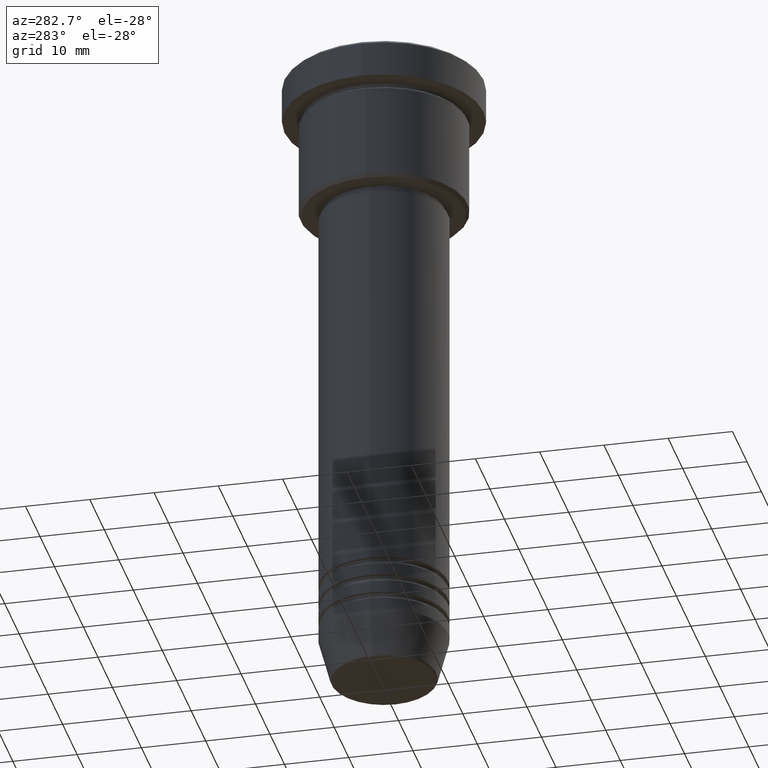
[diagram: clean part render]
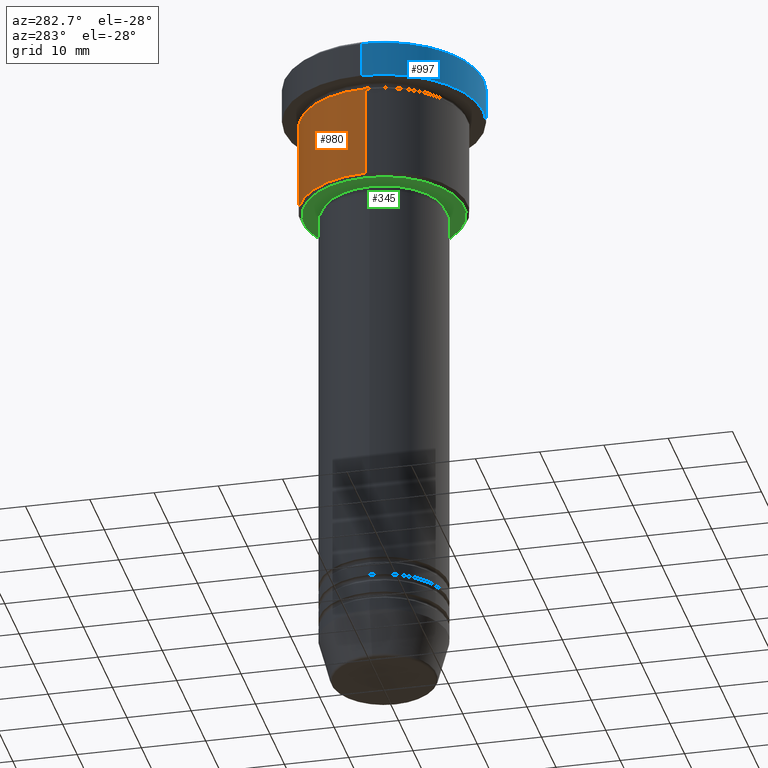
[diagram: same view with three faces highlighted in distinct colors, each labeled with its STEP entity id]
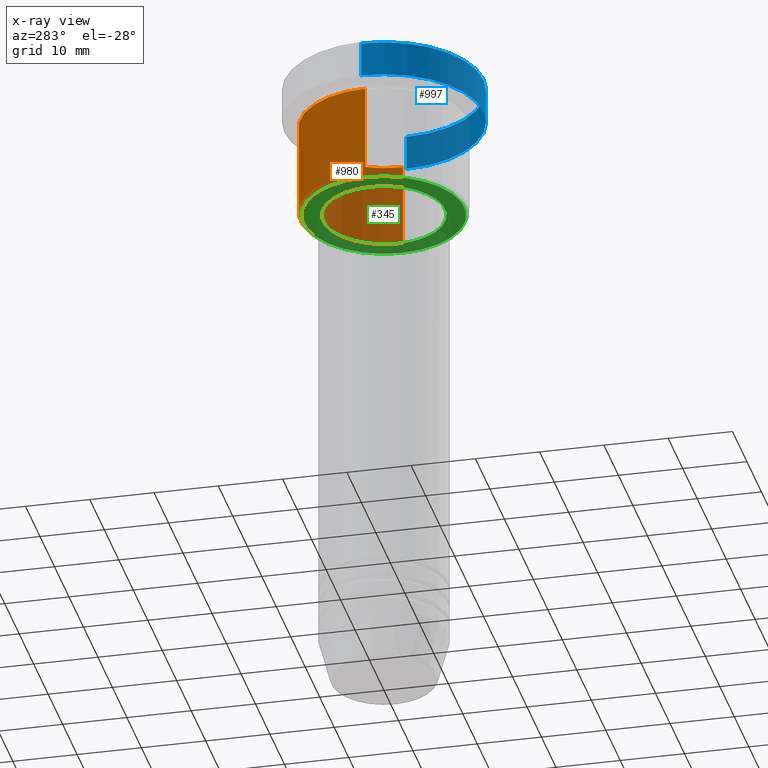
[diagram: x-ray of the same camera — body ghosted, the three highlighted faces saturated]
A machine part, auxiliary view with three faces highlighted in distinct colors.
The next image is the same camera in x-ray (body ghosted, the three faces saturated) — at least one of them is partly hidden behind the body in this view.
Their STEP definitions:

[orange] entity #980 — the highlighted cylindrical surface (partial cylindrical patch) has radius 13 mm, axis along (-0, -0, 1).
#41 = CARTESIAN_POINT ( 'NONE',  ( 0.000000000000000000, 0.000000000000000000, 0.000000000000000000 ) ) ;
#55 = ORIENTED_EDGE ( 'NONE', *, *, #777, .F. ) ;
#99 = ORIENTED_EDGE ( 'NONE', *, *, #1018, .F. ) ;
#100 = VECTOR ( 'NONE', #1055, 1000.000000000000000 ) ;
#116 = CARTESIAN_POINT ( 'NONE',  ( 0.000000000000000000, 0.000000000000000000, -6.999999999999995559 ) ) ;
#156 = CARTESIAN_POINT ( 'NONE',  ( -13.00000000000000000, 1.592040838891559095E-15, -21.49999999999998579 ) ) ;
#180 = CIRCLE ( 'NONE', #495, 13.00000000000000000 ) ;
#199 = VERTEX_POINT ( 'NONE', #1058 ) ;
#261 = VERTEX_POINT ( 'NONE', #337 ) ;
#324 = VERTEX_POINT ( 'NONE', #1109 ) ;
#334 = AXIS2_PLACEMENT_3D ( 'NONE', #41, #783, #1051 ) ;
#337 = CARTESIAN_POINT ( 'NONE',  ( 13.00000000000000000, 0.000000000000000000, -6.999999999999995559 ) ) ;
#430 = DIRECTION ( 'NONE',  ( -1.000000000000000000, 0.000000000000000000, 0.000000000000000000 ) ) ;
#446 = LINE ( 'NONE', #803, #453 ) ;
#453 = VECTOR ( 'NONE', #455, 1000.000000000000000 ) ;
#455 = DIRECTION ( 'NONE',  ( -0.000000000000000000, -0.000000000000000000, 1.000000000000000000 ) ) ;
#465 = ORIENTED_EDGE ( 'NONE', *, *, #566, .T. ) ;
#489 = DIRECTION ( 'NONE',  ( -0.000000000000000000, -0.000000000000000000, 1.000000000000000000 ) ) ;
#495 = AXIS2_PLACEMENT_3D ( 'NONE', #116, #489, #853 ) ;
#542 = CARTESIAN_POINT ( 'NONE',  ( 0.000000000000000000, 0.000000000000000000, -21.49999999999998579 ) ) ;
#566 = EDGE_CURVE ( 'NONE', #1099, #199, #680, .T. ) ;
#621 = DIRECTION ( 'NONE',  ( -0.000000000000000000, -0.000000000000000000, 1.000000000000000000 ) ) ;
#680 = LINE ( 'NONE', #1038, #100 ) ;
#695 = CYLINDRICAL_SURFACE ( 'NONE', #334, 13.00000000000000000 ) ;
#777 = EDGE_CURVE ( 'NONE', #261, #199, #180, .T. ) ;
#783 = DIRECTION ( 'NONE',  ( -0.000000000000000000, -0.000000000000000000, 1.000000000000000000 ) ) ;
#803 = CARTESIAN_POINT ( 'NONE',  ( 13.00000000000000000, 0.000000000000000000, 0.000000000000000000 ) ) ;
#853 = DIRECTION ( 'NONE',  ( 1.000000000000000000, 0.000000000000000000, 0.000000000000000000 ) ) ;
#870 = FACE_OUTER_BOUND ( 'NONE', #1107, .T. ) ;
#980 = ADVANCED_FACE ( 'NONE', ( #870 ), #695, .T. ) ;
#1018 = EDGE_CURVE ( 'NONE', #324, #261, #446, .T. ) ;
#1023 = ORIENTED_EDGE ( 'NONE', *, *, #1110, .T. ) ;
#1038 = CARTESIAN_POINT ( 'NONE',  ( -13.00000000000000000, 1.592040838891559095E-15, 0.000000000000000000 ) ) ;
#1051 = DIRECTION ( 'NONE',  ( 1.000000000000000000, 0.000000000000000000, 0.000000000000000000 ) ) ;
#1055 = DIRECTION ( 'NONE',  ( -0.000000000000000000, -0.000000000000000000, 1.000000000000000000 ) ) ;
#1058 = CARTESIAN_POINT ( 'NONE',  ( -13.00000000000000000, 1.592040838891559095E-15, -6.999999999999995559 ) ) ;
#1080 = AXIS2_PLACEMENT_3D ( 'NONE', #542, #621, #430 ) ;
#1099 = VERTEX_POINT ( 'NONE', #156 ) ;
#1107 = EDGE_LOOP ( 'NONE', ( #1023, #465, #55, #99 ) ) ;
#1109 = CARTESIAN_POINT ( 'NONE',  ( 13.00000000000000000, 0.000000000000000000, -21.49999999999998579 ) ) ;
#1110 = EDGE_CURVE ( 'NONE', #324, #1099, #1136, .T. ) ;
#1136 = CIRCLE ( 'NONE', #1080, 13.00000000000000000 ) ;

[blue] entity #997 — the highlighted cylindrical surface (partial cylindrical patch) has radius 15.5 mm, axis along (-0, -0, 1).
#77 = VERTEX_POINT ( 'NONE', #681 ) ;
#95 = DIRECTION ( 'NONE',  ( 1.000000000000000000, 0.000000000000000000, 0.000000000000000000 ) ) ;
#110 = DIRECTION ( 'NONE',  ( -0.000000000000000000, -0.000000000000000000, 1.000000000000000000 ) ) ;
#111 = EDGE_CURVE ( 'NONE', #77, #299, #594, .T. ) ;
#144 = AXIS2_PLACEMENT_3D ( 'NONE', #182, #339, #1163 ) ;
#182 = CARTESIAN_POINT ( 'NONE',  ( 0.000000000000000000, 0.000000000000000000, -0.4999999999999987232 ) ) ;
#205 = LINE ( 'NONE', #1174, #448 ) ;
#299 = VERTEX_POINT ( 'NONE', #730 ) ;
#303 = EDGE_CURVE ( 'NONE', #582, #1053, #205, .T. ) ;
#339 = DIRECTION ( 'NONE',  ( 0.000000000000000000, 0.000000000000000000, -1.000000000000000000 ) ) ;
#448 = VECTOR ( 'NONE', #1025, 1000.000000000000000 ) ;
#503 = CARTESIAN_POINT ( 'NONE',  ( -15.50000000000000000, 1.898202538678397557E-15, 0.000000000000000000 ) ) ;
#529 = DIRECTION ( 'NONE',  ( -0.000000000000000000, -0.000000000000000000, 1.000000000000000000 ) ) ;
#555 = AXIS2_PLACEMENT_3D ( 'NONE', #611, #529, #1079 ) ;
#574 = AXIS2_PLACEMENT_3D ( 'NONE', #935, #110, #95 ) ;
#582 = VERTEX_POINT ( 'NONE', #896 ) ;
#594 = LINE ( 'NONE', #503, #854 ) ;
#611 = CARTESIAN_POINT ( 'NONE',  ( 0.000000000000000000, 0.000000000000000000, 0.000000000000000000 ) ) ;
#670 = CIRCLE ( 'NONE', #144, 15.50000000000000000 ) ;
#681 = CARTESIAN_POINT ( 'NONE',  ( -15.50000000000000000, 1.898202538678397557E-15, -5.999999999999995559 ) ) ;
#722 = CARTESIAN_POINT ( 'NONE',  ( 15.50000000000000000, 0.000000000000000000, -0.4999999999999987232 ) ) ;
#725 = CIRCLE ( 'NONE', #574, 15.50000000000000000 ) ;
#730 = CARTESIAN_POINT ( 'NONE',  ( -15.50000000000000000, 1.898202538678397557E-15, -0.4999999999999987232 ) ) ;
#754 = EDGE_CURVE ( 'NONE', #77, #582, #725, .T. ) ;
#765 = EDGE_LOOP ( 'NONE', ( #889, #850, #960, #1078 ) ) ;
#787 = FACE_OUTER_BOUND ( 'NONE', #765, .T. ) ;
#850 = ORIENTED_EDGE ( 'NONE', *, *, #754, .T. ) ;
#854 = VECTOR ( 'NONE', #878, 1000.000000000000000 ) ;
#878 = DIRECTION ( 'NONE',  ( -0.000000000000000000, -0.000000000000000000, 1.000000000000000000 ) ) ;
#889 = ORIENTED_EDGE ( 'NONE', *, *, #111, .F. ) ;
#896 = CARTESIAN_POINT ( 'NONE',  ( 15.50000000000000000, 0.000000000000000000, -5.999999999999995559 ) ) ;
#935 = CARTESIAN_POINT ( 'NONE',  ( 0.000000000000000000, 0.000000000000000000, -5.999999999999995559 ) ) ;
#960 = ORIENTED_EDGE ( 'NONE', *, *, #303, .T. ) ;
#997 = ADVANCED_FACE ( 'NONE', ( #787 ), #1054, .T. ) ;
#1025 = DIRECTION ( 'NONE',  ( -0.000000000000000000, -0.000000000000000000, 1.000000000000000000 ) ) ;
#1053 = VERTEX_POINT ( 'NONE', #722 ) ;
#1054 = CYLINDRICAL_SURFACE ( 'NONE', #555, 15.50000000000000000 ) ;
#1078 = ORIENTED_EDGE ( 'NONE', *, *, #1082, .T. ) ;
#1079 = DIRECTION ( 'NONE',  ( 1.000000000000000000, 0.000000000000000000, 0.000000000000000000 ) ) ;
#1082 = EDGE_CURVE ( 'NONE', #1053, #299, #670, .T. ) ;
#1163 = DIRECTION ( 'NONE',  ( 1.000000000000000000, 0.000000000000000000, 0.000000000000000000 ) ) ;
#1174 = CARTESIAN_POINT ( 'NONE',  ( 15.50000000000000000, 0.000000000000000000, 0.000000000000000000 ) ) ;

[green] entity #345 — the highlighted planar face has unit normal (0, 0, -1).
#91 = CARTESIAN_POINT ( 'NONE',  ( 12.49999999999998401, 0.000000000000000000, -22.00000000000000711 ) ) ;
#92 = CARTESIAN_POINT ( 'NONE',  ( 0.000000000000000000, 0.000000000000000000, -22.00000000000001066 ) ) ;
#106 = CARTESIAN_POINT ( 'NONE',  ( 0.000000000000000000, 13.00000000000000000, -22.00000000000000711 ) ) ;
#133 = EDGE_CURVE ( 'NONE', #664, #570, #549, .T. ) ;
#155 = ORIENTED_EDGE ( 'NONE', *, *, #133, .T. ) ;
#193 = ORIENTED_EDGE ( 'NONE', *, *, #560, .T. ) ;
#243 = EDGE_LOOP ( 'NONE', ( #601, #343 ) ) ;
#245 = CARTESIAN_POINT ( 'NONE',  ( 0.000000000000000000, 0.000000000000000000, -22.00000000000000711 ) ) ;
#275 = AXIS2_PLACEMENT_3D ( 'NONE', #245, #306, #936 ) ;
#306 = DIRECTION ( 'NONE',  ( 0.000000000000000000, 0.000000000000000000, -1.000000000000000000 ) ) ;
#343 = ORIENTED_EDGE ( 'NONE', *, *, #1142, .T. ) ;
#345 = ADVANCED_FACE ( 'NONE', ( #478, #920 ), #930, .T. ) ;
#361 = DIRECTION ( 'NONE',  ( 1.000000000000000000, 0.000000000000000000, 0.000000000000000000 ) ) ;
#373 = AXIS2_PLACEMENT_3D ( 'NONE', #641, #728, #538 ) ;
#384 = EDGE_CURVE ( 'NONE', #846, #1154, #946, .T. ) ;
#390 = AXIS2_PLACEMENT_3D ( 'NONE', #106, #667, #1013 ) ;
#407 = CARTESIAN_POINT ( 'NONE',  ( 0.000000000000000000, 0.000000000000000000, -22.00000000000000711 ) ) ;
#429 = AXIS2_PLACEMENT_3D ( 'NONE', #92, #911, #361 ) ;
#434 = CIRCLE ( 'NONE', #373, 9.500000000000000000 ) ;
#439 = CARTESIAN_POINT ( 'NONE',  ( -12.49999999999998401, 1.561424668912874125E-15, -22.00000000000000711 ) ) ;
#478 = FACE_OUTER_BOUND ( 'NONE', #662, .T. ) ;
#498 = CARTESIAN_POINT ( 'NONE',  ( 9.500000000000000000, 0.000000000000000000, -22.00000000000001066 ) ) ;
#538 = DIRECTION ( 'NONE',  ( 1.000000000000000000, 0.000000000000000000, 0.000000000000000000 ) ) ;
#549 = CIRCLE ( 'NONE', #1022, 12.49999999999998401 ) ;
#552 = CIRCLE ( 'NONE', #275, 12.49999999999998401 ) ;
#560 = EDGE_CURVE ( 'NONE', #570, #664, #552, .T. ) ;
#570 = VERTEX_POINT ( 'NONE', #439 ) ;
#601 = ORIENTED_EDGE ( 'NONE', *, *, #384, .T. ) ;
#641 = CARTESIAN_POINT ( 'NONE',  ( 0.000000000000000000, 0.000000000000000000, -22.00000000000001066 ) ) ;
#662 = EDGE_LOOP ( 'NONE', ( #155, #193 ) ) ;
#664 = VERTEX_POINT ( 'NONE', #91 ) ;
#667 = DIRECTION ( 'NONE',  ( 0.000000000000000000, 0.000000000000000000, -1.000000000000000000 ) ) ;
#728 = DIRECTION ( 'NONE',  ( -0.000000000000000000, -0.000000000000000000, 1.000000000000000000 ) ) ;
#808 = CARTESIAN_POINT ( 'NONE',  ( -9.500000000000000000, 1.163414459189985485E-15, -22.00000000000001066 ) ) ;
#846 = VERTEX_POINT ( 'NONE', #498 ) ;
#911 = DIRECTION ( 'NONE',  ( -0.000000000000000000, -0.000000000000000000, 1.000000000000000000 ) ) ;
#920 = FACE_BOUND ( 'NONE', #243, .T. ) ;
#930 = PLANE ( 'NONE',  #390 ) ;
#936 = DIRECTION ( 'NONE',  ( -1.000000000000000000, 0.000000000000000000, 0.000000000000000000 ) ) ;
#946 = CIRCLE ( 'NONE', #429, 9.500000000000000000 ) ;
#1013 = DIRECTION ( 'NONE',  ( -1.000000000000000000, 0.000000000000000000, -0.000000000000000000 ) ) ;
#1022 = AXIS2_PLACEMENT_3D ( 'NONE', #407, #1121, #1052 ) ;
#1052 = DIRECTION ( 'NONE',  ( -1.000000000000000000, 0.000000000000000000, 0.000000000000000000 ) ) ;
#1121 = DIRECTION ( 'NONE',  ( 0.000000000000000000, 0.000000000000000000, -1.000000000000000000 ) ) ;
#1142 = EDGE_CURVE ( 'NONE', #1154, #846, #434, .T. ) ;
#1154 = VERTEX_POINT ( 'NONE', #808 ) ;